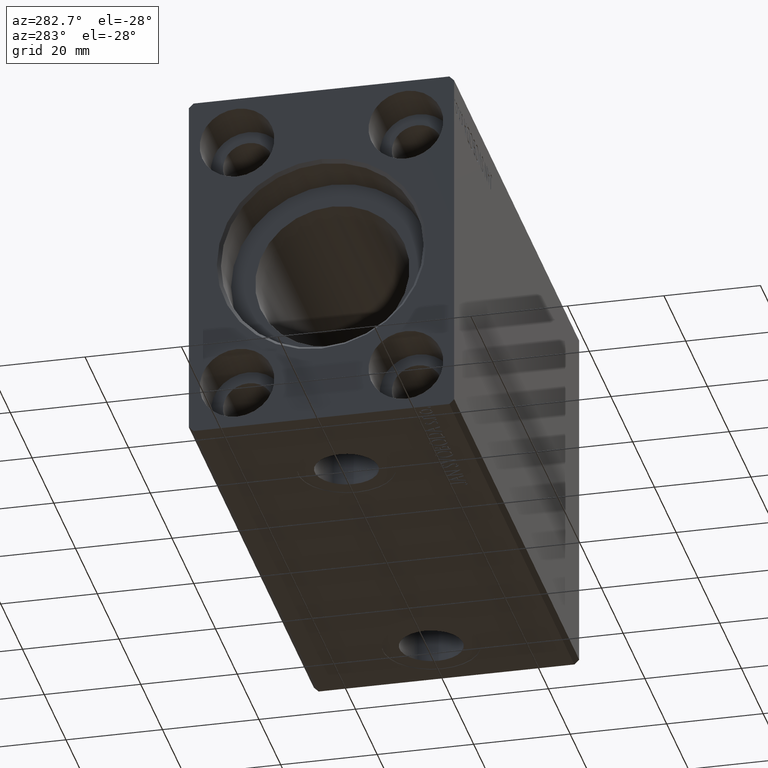
[diagram: clean part render]
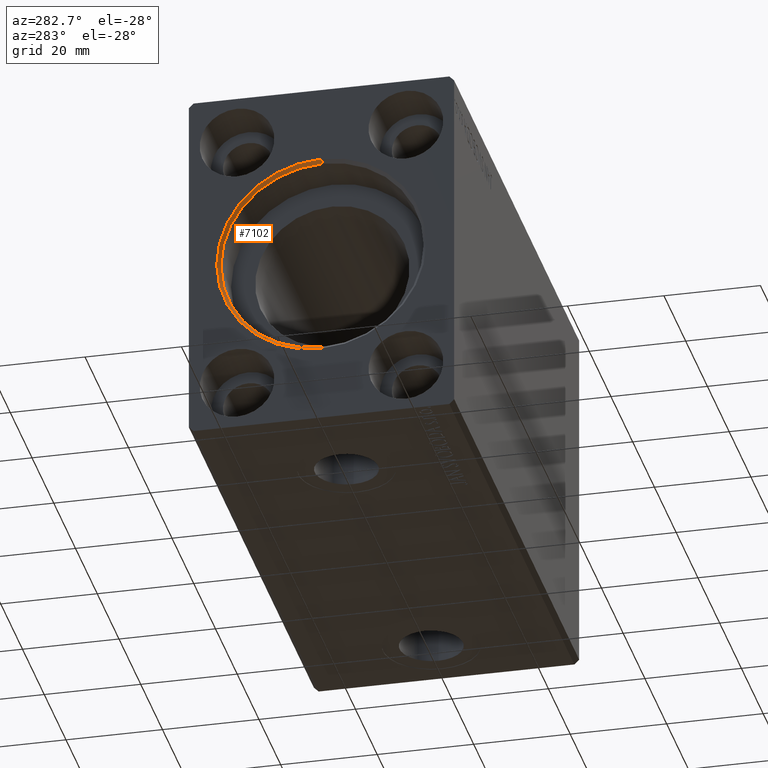
[diagram: same view with one face highlighted and labeled with its STEP entity id]
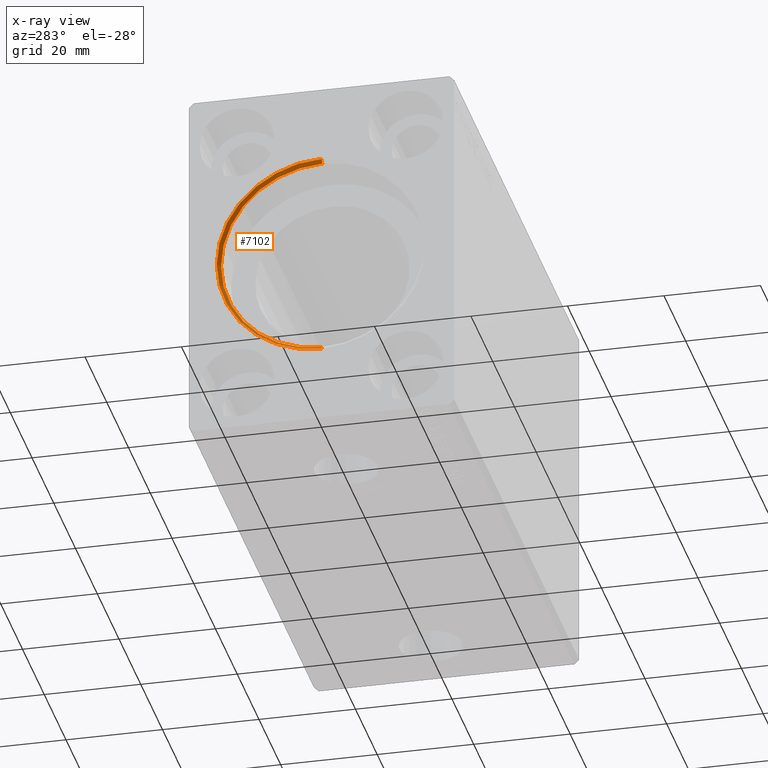
[diagram: x-ray of the same camera — body ghosted, the highlighted face saturated]
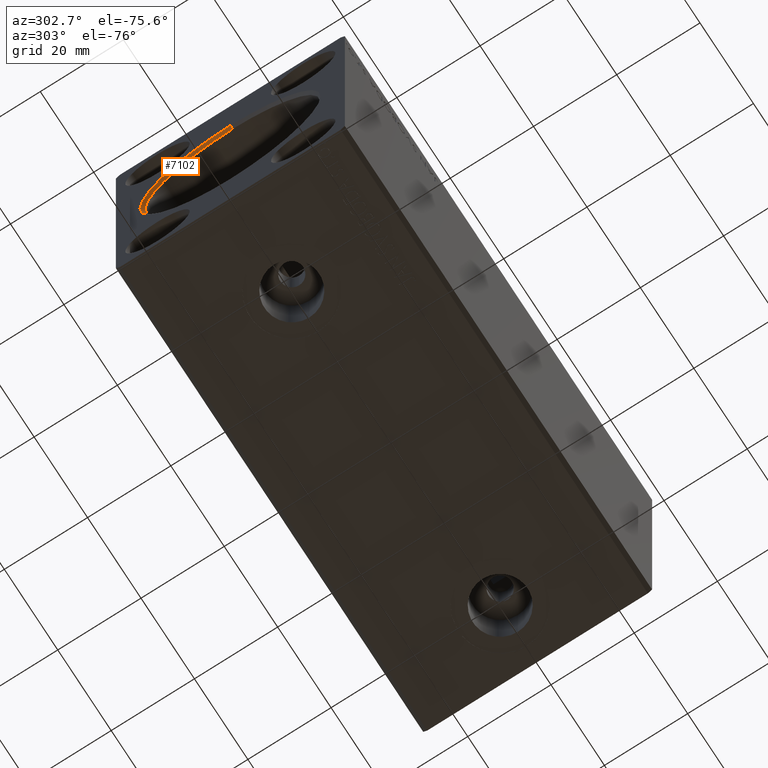
[diagram: same view with one face highlighted and labeled with its STEP entity id]
A machine part, auxiliary view. The second image highlights one B-rep face of the part: STEP entity #7102.
The next image is the same camera in x-ray: the body ghosted, the highlighted face saturated — about 0% of this face is hidden behind the body in this view.
A second angle (auxiliary view) of the same face is appended — the face is thin or edge-on in the first view.
In plain terms, the highlighted conical surface has half-angle 45 deg.
Its self-contained STEP definition (entity closure, byte-faithful):
#1184 = DIRECTION ( 'NONE',  ( -1.000000000000000000, 0.000000000000000000, 0.000000000000000000 ) ) ;
#2211 = CARTESIAN_POINT ( 'NONE',  ( 0.000000000000000000, 0.000000000000000000, 0.000000000000000000 ) ) ;
#2464 = EDGE_CURVE ( 'NONE', #36174, #30371, #40324, .T. ) ;
#2597 = DIRECTION ( 'NONE',  ( 0.000000000000000000, 0.000000000000000000, 1.000000000000000000 ) ) ;
#3237 = CARTESIAN_POINT ( 'NONE',  ( 0.7000000000000443645, 0.000000000000000000, 21.00000000000000000 ) ) ;
#3583 = DIRECTION ( 'NONE',  ( 0.000000000000000000, 0.000000000000000000, -1.000000000000000000 ) ) ;
#5439 = DIRECTION ( 'NONE',  ( 1.000000000000000000, 0.000000000000000000, 0.000000000000000000 ) ) ;
#6437 = EDGE_CURVE ( 'NONE', #14583, #36174, #22347, .T. ) ;
#7102 = ADVANCED_FACE ( 'NONE', ( #15097 ), #19086, .F. ) ;
#7135 = EDGE_CURVE ( 'NONE', #33809, #30371, #42033, .T. ) ;
#8422 = EDGE_LOOP ( 'NONE', ( #10632, #14331, #18642, #27402 ) ) ;
#10056 = AXIS2_PLACEMENT_3D ( 'NONE', #2211, #5439, #18560 ) ;
#10632 = ORIENTED_EDGE ( 'NONE', *, *, #6437, .F. ) ;
#13354 = CARTESIAN_POINT ( 'NONE',  ( 0.7000000000000443645, 0.000000000000000000, 21.00000000000000000 ) ) ;
#14331 = ORIENTED_EDGE ( 'NONE', *, *, #22958, .F. ) ;
#14583 = VERTEX_POINT ( 'NONE', #19162 ) ;
#15097 = FACE_OUTER_BOUND ( 'NONE', #8422, .T. ) ;
#18560 = DIRECTION ( 'NONE',  ( 0.000000000000000000, 0.000000000000000000, -1.000000000000000000 ) ) ;
#18642 = ORIENTED_EDGE ( 'NONE', *, *, #7135, .T. ) ;
#19086 = CONICAL_SURFACE ( 'NONE', #35609, 21.00000000000000000, 0.7853981633974432830 ) ;
#19162 = CARTESIAN_POINT ( 'NONE',  ( 0.7000000000000443645, 2.571758278209441661E-15, -21.00000000000000000 ) ) ;
#19328 = CARTESIAN_POINT ( 'NONE',  ( 0.7000000000000443645, 2.571758278209441661E-15, -21.00000000000000000 ) ) ;
#19368 = AXIS2_PLACEMENT_3D ( 'NONE', #33935, #1184, #3583 ) ;
#21699 = CARTESIAN_POINT ( 'NONE',  ( 0.000000000000000000, 0.000000000000000000, 21.70000000000003837 ) ) ;
#22347 = LINE ( 'NONE', #19328, #33541 ) ;
#22958 = EDGE_CURVE ( 'NONE', #33809, #14583, #40739, .T. ) ;
#27381 = CARTESIAN_POINT ( 'NONE',  ( 0.000000000000000000, 2.657483554149761471E-15, -21.70000000000003837 ) ) ;
#27402 = ORIENTED_EDGE ( 'NONE', *, *, #2464, .F. ) ;
#28250 = CARTESIAN_POINT ( 'NONE',  ( 0.7000000000000443645, 0.000000000000000000, 0.000000000000000000 ) ) ;
#30371 = VERTEX_POINT ( 'NONE', #21699 ) ;
#33541 = VECTOR ( 'NONE', #41760, 1000.000000000000000 ) ;
#33809 = VERTEX_POINT ( 'NONE', #13354 ) ;
#33935 = CARTESIAN_POINT ( 'NONE',  ( 0.7000000000000443645, 0.000000000000000000, 0.000000000000000000 ) ) ;
#35609 = AXIS2_PLACEMENT_3D ( 'NONE', #28250, #41407, #2597 ) ;
#36174 = VERTEX_POINT ( 'NONE', #27381 ) ;
#37680 = VECTOR ( 'NONE', #38991, 1000.000000000000000 ) ;
#38991 = DIRECTION ( 'NONE',  ( -0.7071067811865511255, 0.000000000000000000, 0.7071067811865440200 ) ) ;
#40324 = CIRCLE ( 'NONE', #10056, 21.70000000000003837 ) ;
#40739 = CIRCLE ( 'NONE', #19368, 21.00000000000000000 ) ;
#41407 = DIRECTION ( 'NONE',  ( -1.000000000000000000, 0.000000000000000000, 0.000000000000000000 ) ) ;
#41760 = DIRECTION ( 'NONE',  ( -0.7071067811865511255, 8.659560562354889717E-17, -0.7071067811865440200 ) ) ;
#42033 = LINE ( 'NONE', #3237, #37680 ) ;